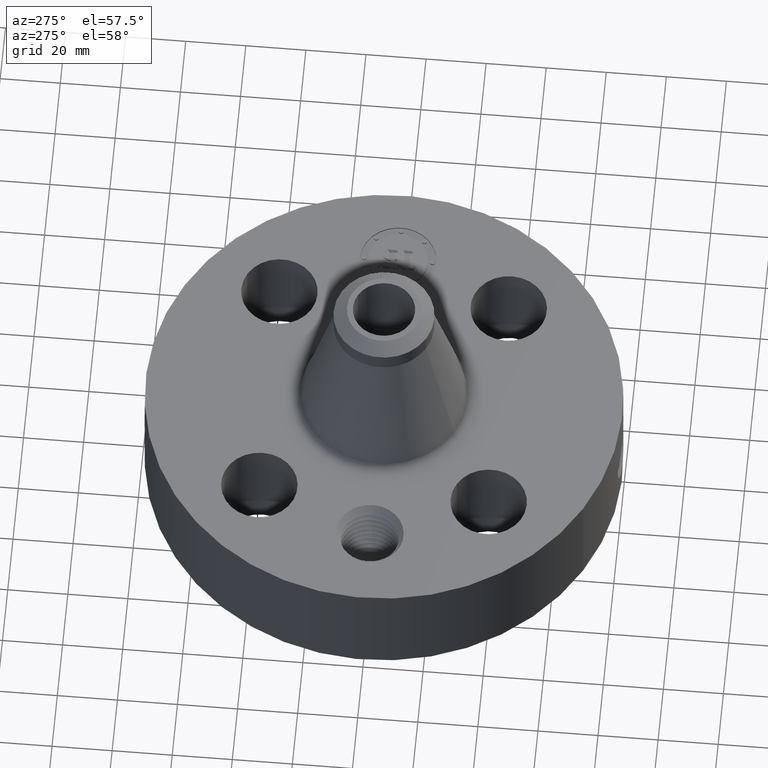
[diagram: clean part render]
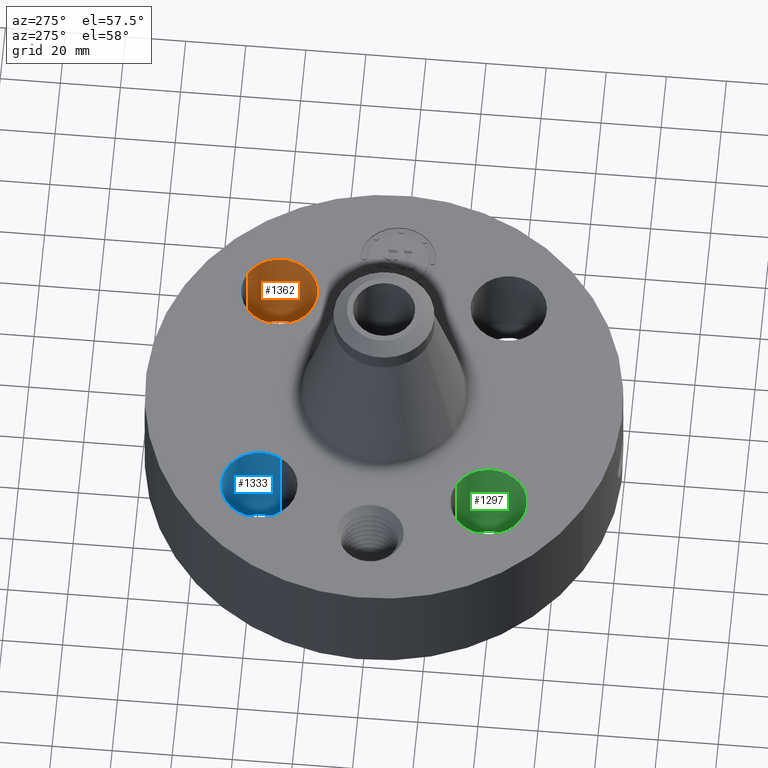
[diagram: same view with three faces highlighted in distinct colors, each labeled with its STEP entity id]
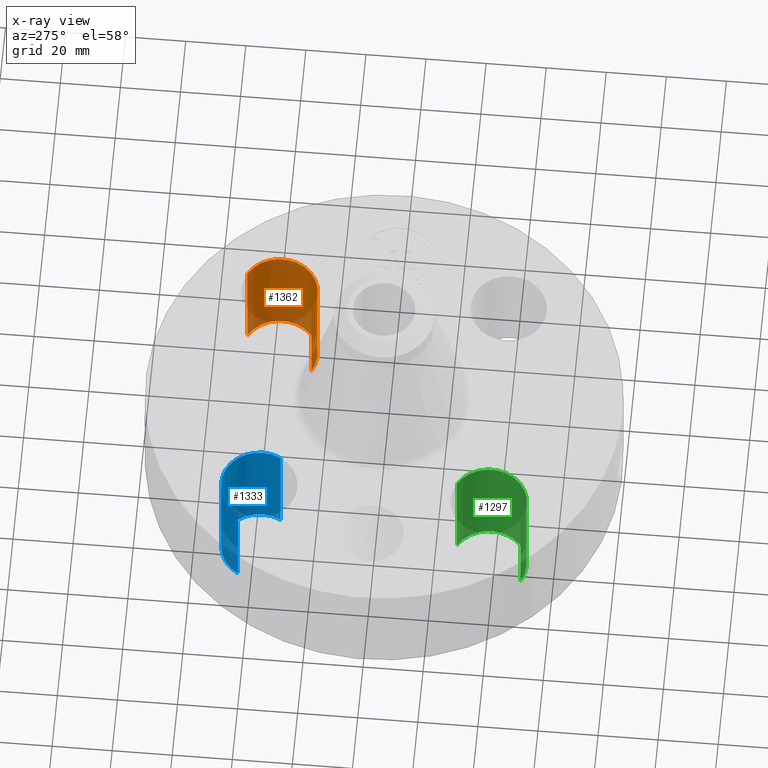
[diagram: x-ray of the same camera — body ghosted, the three highlighted faces saturated]
A machine part, auxiliary view with three faces highlighted in distinct colors.
The next image is the same camera in x-ray (body ghosted, the three faces saturated) — at least one of them is partly hidden behind the body in this view.
Their STEP definitions:

[orange] entity #1362 — the highlighted cylindrical surface (partial cylindrical patch) has radius 12.7 mm, axis along (0, 0, -1).
#305=AXIS2_PLACEMENT_3D('Circle Axis2P3D',#303,#304,$) ;
#541=AXIS2_PLACEMENT_3D('Circle Axis2P3D',#539,#540,$) ;
#1337=AXIS2_PLACEMENT_3D('Cylinder Axis2P3D',#1334,#1335,#1336) ;
#298=CARTESIAN_POINT('Vertex',(1.26288914072,1.06381062908,0.250000000001)) ;
#300=CARTESIAN_POINT('Vertex',(1.74231467933,1.94139319097,0.250000000001)) ;
#303=CARTESIAN_POINT('Axis2P3D Location',(1.50260191003,1.50260191003,0.250000000001)) ;
#539=CARTESIAN_POINT('Axis2P3D Location',(1.50260191003,1.50260191003,1.75000000001)) ;
#543=CARTESIAN_POINT('Vertex',(1.74231467933,1.94139319097,1.75000000001)) ;
#545=CARTESIAN_POINT('Vertex',(1.26288914072,1.06381062908,1.75000000001)) ;
#1334=CARTESIAN_POINT('Axis2P3D Location',(1.50260191003,1.50260191003,1.74606299213)) ;
#1339=CARTESIAN_POINT('Line Origine',(1.26288914072,1.06381062908,1.)) ;
#1344=CARTESIAN_POINT('Line Origine',(1.74231467933,1.94139319097,1.)) ;
#304=DIRECTION('Axis2P3D Direction',(0.,0.,-0.0393700787402)) ;
#540=DIRECTION('Axis2P3D Direction',(0.,0.,-0.0393700787402)) ;
#1335=DIRECTION('Axis2P3D Direction',(0.,0.,-0.0393700787402)) ;
#1336=DIRECTION('Axis2P3D XDirection',(0.0188750212049,0.0345504945626,0.)) ;
#1340=DIRECTION('Vector Direction',(0.,0.,-0.0393700787402)) ;
#1345=DIRECTION('Vector Direction',(0.,0.,-0.0393700787402)) ;
#1341=VECTOR('Line Direction',#1340,0.0393700787402) ;
#1346=VECTOR('Line Direction',#1345,0.0393700787402) ;
#1357=ORIENTED_EDGE('',*,*,#1348,.F.) ;
#1358=ORIENTED_EDGE('',*,*,#307,.T.) ;
#1359=ORIENTED_EDGE('',*,*,#1343,.T.) ;
#1360=ORIENTED_EDGE('',*,*,#547,.F.) ;
#1362=ADVANCED_FACE('PartBody',(#1361),#1338,.F.) ;
#306=CIRCLE('generated circle',#305,0.500000000002) ;
#542=CIRCLE('generated circle',#541,0.500000000002) ;
#1338=CYLINDRICAL_SURFACE('generated cylinder',#1337,0.500000000002) ;
#307=EDGE_CURVE('',#301,#299,#306,.T.) ;
#547=EDGE_CURVE('',#544,#546,#542,.T.) ;
#1343=EDGE_CURVE('',#299,#546,#1342,.F.) ;
#1348=EDGE_CURVE('',#301,#544,#1347,.F.) ;
#1356=EDGE_LOOP('',(#1357,#1358,#1359,#1360)) ;
#1361=FACE_OUTER_BOUND('',#1356,.T.) ;
#1342=LINE('Line',#1339,#1341) ;
#1347=LINE('Line',#1344,#1346) ;
#299=VERTEX_POINT('',#298) ;
#301=VERTEX_POINT('',#300) ;
#544=VERTEX_POINT('',#543) ;
#546=VERTEX_POINT('',#545) ;

[blue] entity #1333 — the highlighted cylindrical surface (partial cylindrical patch) has radius 12.7 mm, axis along (-0, 0, -1).
#287=AXIS2_PLACEMENT_3D('Circle Axis2P3D',#285,#286,$) ;
#523=AXIS2_PLACEMENT_3D('Circle Axis2P3D',#521,#522,$) ;
#1308=AXIS2_PLACEMENT_3D('Cylinder Axis2P3D',#1305,#1306,#1307) ;
#280=CARTESIAN_POINT('Vertex',(-1.06381062908,1.26288914072,0.250000000001)) ;
#282=CARTESIAN_POINT('Vertex',(-1.94139319097,1.74231467933,0.250000000001)) ;
#285=CARTESIAN_POINT('Axis2P3D Location',(-1.50260191003,1.50260191003,0.250000000001)) ;
#521=CARTESIAN_POINT('Axis2P3D Location',(-1.50260191003,1.50260191003,1.75000000001)) ;
#525=CARTESIAN_POINT('Vertex',(-1.94139319097,1.74231467933,1.75000000001)) ;
#527=CARTESIAN_POINT('Vertex',(-1.06381062908,1.26288914072,1.75000000001)) ;
#1305=CARTESIAN_POINT('Axis2P3D Location',(-1.50260191003,1.50260191003,1.74606299213)) ;
#1310=CARTESIAN_POINT('Line Origine',(-1.06381062908,1.26288914072,1.)) ;
#1315=CARTESIAN_POINT('Line Origine',(-1.94139319097,1.74231467933,1.)) ;
#286=DIRECTION('Axis2P3D Direction',(0.,0.,-0.0393700787402)) ;
#522=DIRECTION('Axis2P3D Direction',(0.,0.,-0.0393700787402)) ;
#1306=DIRECTION('Axis2P3D Direction',(-0.,0.,-0.0393700787402)) ;
#1307=DIRECTION('Axis2P3D XDirection',(-0.0345504945626,0.0188750212049,0.)) ;
#1311=DIRECTION('Vector Direction',(0.,0.,-0.0393700787402)) ;
#1316=DIRECTION('Vector Direction',(0.,0.,-0.0393700787402)) ;
#1312=VECTOR('Line Direction',#1311,0.0393700787402) ;
#1317=VECTOR('Line Direction',#1316,0.0393700787402) ;
#1328=ORIENTED_EDGE('',*,*,#1319,.F.) ;
#1329=ORIENTED_EDGE('',*,*,#289,.T.) ;
#1330=ORIENTED_EDGE('',*,*,#1314,.T.) ;
#1331=ORIENTED_EDGE('',*,*,#529,.F.) ;
#1333=ADVANCED_FACE('PartBody',(#1332),#1309,.F.) ;
#288=CIRCLE('generated circle',#287,0.500000000002) ;
#524=CIRCLE('generated circle',#523,0.500000000002) ;
#1309=CYLINDRICAL_SURFACE('generated cylinder',#1308,0.500000000002) ;
#289=EDGE_CURVE('',#283,#281,#288,.T.) ;
#529=EDGE_CURVE('',#526,#528,#524,.T.) ;
#1314=EDGE_CURVE('',#281,#528,#1313,.F.) ;
#1319=EDGE_CURVE('',#283,#526,#1318,.F.) ;
#1327=EDGE_LOOP('',(#1328,#1329,#1330,#1331)) ;
#1332=FACE_OUTER_BOUND('',#1327,.T.) ;
#1313=LINE('Line',#1310,#1312) ;
#1318=LINE('Line',#1315,#1317) ;
#281=VERTEX_POINT('',#280) ;
#283=VERTEX_POINT('',#282) ;
#526=VERTEX_POINT('',#525) ;
#528=VERTEX_POINT('',#527) ;

[green] entity #1297 — the highlighted cylindrical surface (partial cylindrical patch) has radius 12.7 mm, axis along (0, -0, -1).
#260=AXIS2_PLACEMENT_3D('Circle Axis2P3D',#258,#259,$) ;
#514=AXIS2_PLACEMENT_3D('Circle Axis2P3D',#512,#513,$) ;
#1279=AXIS2_PLACEMENT_3D('Cylinder Axis2P3D',#1276,#1277,#1278) ;
#258=CARTESIAN_POINT('Axis2P3D Location',(-1.50260191003,-1.50260191003,0.250000000001)) ;
#262=CARTESIAN_POINT('Vertex',(-1.26288914072,-1.06381062908,0.250000000001)) ;
#264=CARTESIAN_POINT('Vertex',(-1.74231467933,-1.94139319097,0.250000000001)) ;
#507=CARTESIAN_POINT('Vertex',(-1.74231467933,-1.94139319097,1.75000000001)) ;
#509=CARTESIAN_POINT('Vertex',(-1.26288914072,-1.06381062908,1.75000000001)) ;
#512=CARTESIAN_POINT('Axis2P3D Location',(-1.50260191003,-1.50260191003,1.75000000001)) ;
#1276=CARTESIAN_POINT('Axis2P3D Location',(-1.50260191003,-1.50260191003,1.74606299213)) ;
#1281=CARTESIAN_POINT('Line Origine',(-1.26288914072,-1.06381062908,1.)) ;
#1286=CARTESIAN_POINT('Line Origine',(-1.74231467933,-1.94139319097,1.)) ;
#259=DIRECTION('Axis2P3D Direction',(0.,0.,-0.0393700787402)) ;
#513=DIRECTION('Axis2P3D Direction',(0.,0.,-0.0393700787402)) ;
#1277=DIRECTION('Axis2P3D Direction',(0.,-0.,-0.0393700787402)) ;
#1278=DIRECTION('Axis2P3D XDirection',(-0.0188750212049,-0.0345504945626,0.)) ;
#1282=DIRECTION('Vector Direction',(0.,0.,-0.0393700787402)) ;
#1287=DIRECTION('Vector Direction',(0.,0.,-0.0393700787402)) ;
#1283=VECTOR('Line Direction',#1282,0.0393700787402) ;
#1288=VECTOR('Line Direction',#1287,0.0393700787402) ;
#1292=ORIENTED_EDGE('',*,*,#1285,.F.) ;
#1293=ORIENTED_EDGE('',*,*,#266,.T.) ;
#1294=ORIENTED_EDGE('',*,*,#1290,.T.) ;
#1295=ORIENTED_EDGE('',*,*,#516,.F.) ;
#1297=ADVANCED_FACE('PartBody',(#1296),#1280,.F.) ;
#261=CIRCLE('generated circle',#260,0.500000000002) ;
#515=CIRCLE('generated circle',#514,0.500000000002) ;
#1280=CYLINDRICAL_SURFACE('generated cylinder',#1279,0.500000000002) ;
#266=EDGE_CURVE('',#263,#265,#261,.T.) ;
#516=EDGE_CURVE('',#510,#508,#515,.T.) ;
#1285=EDGE_CURVE('',#263,#510,#1284,.F.) ;
#1290=EDGE_CURVE('',#265,#508,#1289,.F.) ;
#1291=EDGE_LOOP('',(#1292,#1293,#1294,#1295)) ;
#1296=FACE_OUTER_BOUND('',#1291,.T.) ;
#1284=LINE('Line',#1281,#1283) ;
#1289=LINE('Line',#1286,#1288) ;
#263=VERTEX_POINT('',#262) ;
#265=VERTEX_POINT('',#264) ;
#508=VERTEX_POINT('',#507) ;
#510=VERTEX_POINT('',#509) ;